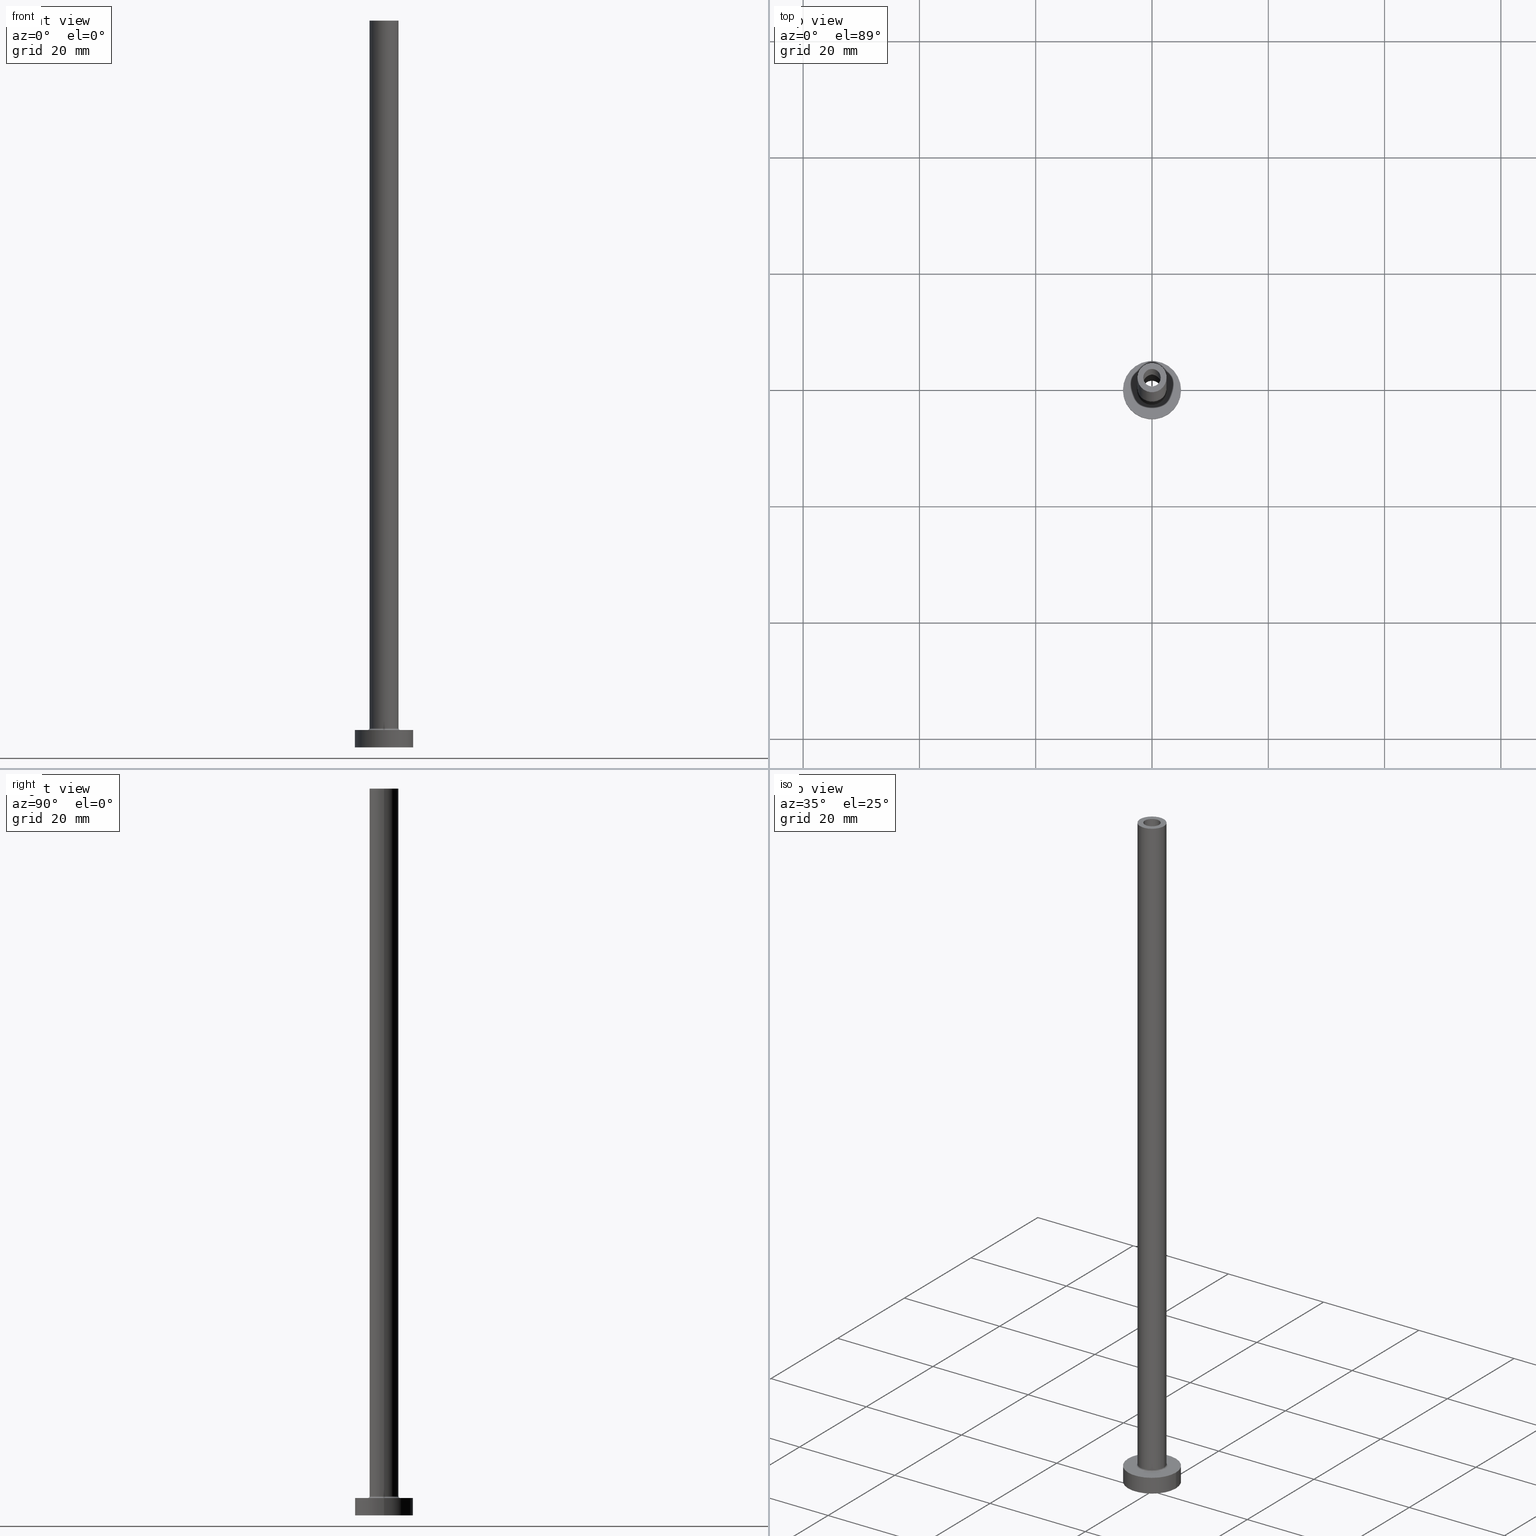
[diagram: canonical four-view strip — front | top / right | iso, engineering-drawing reading convention]
A machine part, canonical four-view strip (front | top / right | iso — engineering-drawing reading convention). The complete STEP part file that produces these views, byte-faithful:
ISO-10303-21;
HEADER;
FILE_DESCRIPTION (( 'STEP AP203' ),
    '1' );
FILE_NAME ('d2a5.STEP',
    '2023-02-13T12:47:48',
    ( '' ),
    ( '' ),
    'SwSTEP 2.0',
    'SolidWorks 2019',
    '' );
FILE_SCHEMA (( 'CONFIG_CONTROL_DESIGN' ));
ENDSEC;

DATA;
#1 = CARTESIAN_POINT ( 'NONE',  ( 1.500000000000000222, 1.836970198721029934E-16, 80.00000000000000000 ) ) ;
#2 = PERSON_AND_ORGANIZATION ( #167, #107 ) ;
#3 = AXIS2_PLACEMENT_3D ( 'NONE', #445, #434, #114 ) ;
#4 = AXIS2_PLACEMENT_3D ( 'NONE', #307, #91, #385 ) ;
#5 = CARTESIAN_POINT ( 'NONE',  ( 0.000000000000000000, 0.000000000000000000, 3.299999999999997158 ) ) ;
#6 = AXIS2_PLACEMENT_3D ( 'NONE', #215, #180, #136 ) ;
#7 = ADVANCED_FACE ( 'NONE', ( #112, #209 ), #423, .T. ) ;
#8 = COORDINATED_UNIVERSAL_TIME_OFFSET ( 1, 0, .AHEAD. ) ;
#9 = DIRECTION ( 'NONE',  ( 0.000000000000000000, 0.000000000000000000, 1.000000000000000000 ) ) ;
#10 = DIRECTION ( 'NONE',  ( 0.000000000000000000, 0.000000000000000000, -1.000000000000000000 ) ) ;
#11 = COORDINATED_UNIVERSAL_TIME_OFFSET ( 1, 0, .AHEAD. ) ;
#12 = LOCAL_TIME ( 13, 47, 48.00000000000000000, #8 ) ;
#13 = DIRECTION ( 'NONE',  ( 0.000000000000000000, -1.000000000000000000, 0.000000000000000000 ) ) ;
#14 = DIRECTION ( 'NONE',  ( -0.000000000000000000, -0.000000000000000000, -1.000000000000000000 ) ) ;
#15 = APPROVAL ( #395, 'NEUR�EN�' ) ;
#16 = ORIENTED_EDGE ( 'NONE', *, *, #141, .T. ) ;
#17 = DIRECTION ( 'NONE',  ( 1.000000000000000000, 0.000000000000000000, 0.000000000000000000 ) ) ;
#18 = LINE ( 'NONE', #425, #142 ) ;
#19 = LOCAL_TIME ( 13, 47, 48.00000000000000000, #11 ) ;
#20 = ORIENTED_EDGE ( 'NONE', *, *, #382, .T. ) ;
#21 = ADVANCED_FACE ( 'NONE', ( #316 ), #447, .F. ) ;
#22 = CARTESIAN_POINT ( 'NONE',  ( 0.000000000000000000, 0.000000000000000000, 3.000000000000000000 ) ) ;
#23 = ORIENTED_EDGE ( 'NONE', *, *, #281, .F. ) ;
#24 = EDGE_LOOP ( 'NONE', ( #342, #23, #243, #235 ) ) ;
#25 = DIRECTION ( 'NONE',  ( -0.000000000000000000, -0.000000000000000000, -1.000000000000000000 ) ) ;
#26 = ORIENTED_EDGE ( 'NONE', *, *, #171, .T. ) ;
#27 = AXIS2_PLACEMENT_3D ( 'NONE', #232, #297, #404 ) ;
#28 = CIRCLE ( 'NONE', #211, 2.500000000000000000 ) ;
#29 = EDGE_CURVE ( 'NONE', #78, #315, #365, .T. ) ;
#30 = VERTEX_POINT ( 'NONE', #219 ) ;
#31 = ORIENTED_EDGE ( 'NONE', *, *, #246, .F. ) ;
#32 = DIRECTION ( 'NONE',  ( -0.000000000000000000, -0.000000000000000000, -1.000000000000000000 ) ) ;
#33 = APPROVAL_PERSON_ORGANIZATION ( #368, #15, #289 ) ;
#34 = CARTESIAN_POINT ( 'NONE',  ( -2.500000000000000000, 0.000000000000000000, 3.299999999999997158 ) ) ;
#35 = PERSON_AND_ORGANIZATION ( #167, #107 ) ;
#36 = CARTESIAN_POINT ( 'NONE',  ( 0.000000000000000000, 0.000000000000000000, 125.0000000000000000 ) ) ;
#37 = COORDINATED_UNIVERSAL_TIME_OFFSET ( 1, 0, .AHEAD. ) ;
#38 = DIRECTION ( 'NONE',  ( -0.000000000000000000, -0.000000000000000000, -1.000000000000000000 ) ) ;
#39 = COORDINATED_UNIVERSAL_TIME_OFFSET ( 1, 0, .AHEAD. ) ;
#40 = DIRECTION ( 'NONE',  ( 0.000000000000000000, 0.000000000000000000, 1.000000000000000000 ) ) ;
#41 = CIRCLE ( 'NONE', #175, 2.799999999999999822 ) ;
#42 = PERSON_AND_ORGANIZATION_ROLE ( 'classification_officer' ) ;
#43 = CARTESIAN_POINT ( 'NONE',  ( -2.799999999999999822, 3.429011037612589276E-16, 2.999999999999998668 ) ) ;
#44 = PERSON_AND_ORGANIZATION ( #167, #107 ) ;
#45 = LINE ( 'NONE', #437, #203 ) ;
#46 = EDGE_LOOP ( 'NONE', ( #386, #193 ) ) ;
#47 = ADVANCED_FACE ( 'NONE', ( #364, #458 ), #103, .F. ) ;
#48 = CARTESIAN_POINT ( 'NONE',  ( 0.000000000000000000, 0.000000000000000000, 125.0000000000000000 ) ) ;
#49 = EDGE_LOOP ( 'NONE', ( #420, #257, #99, #335 ) ) ;
#50 = CARTESIAN_POINT ( 'NONE',  ( 0.000000000000000000, 0.000000000000000000, 80.00000000000000000 ) ) ;
#51 = CARTESIAN_POINT ( 'NONE',  ( 0.000000000000000000, 0.000000000000000000, 125.0000000000000000 ) ) ;
#52 = VERTEX_POINT ( 'NONE', #176 ) ;
#53 =( LENGTH_UNIT ( ) NAMED_UNIT ( * ) SI_UNIT ( .MILLI., .METRE. ) );
#54 = ORIENTED_EDGE ( 'NONE', *, *, #267, .F. ) ;
#55 = PLANE ( 'NONE',  #221 ) ;
#56 = VERTEX_POINT ( 'NONE', #64 ) ;
#57 = DIRECTION ( 'NONE',  ( 0.000000000000000000, 0.000000000000000000, 1.000000000000000000 ) ) ;
#58 = ORIENTED_EDGE ( 'NONE', *, *, #361, .T. ) ;
#59 = ADVANCED_FACE ( 'NONE', ( #362 ), #320, .F. ) ;
#60 = ORIENTED_EDGE ( 'NONE', *, *, #134, .F. ) ;
#61 = AXIS2_PLACEMENT_3D ( 'NONE', #455, #125, #98 ) ;
#62 = CIRCLE ( 'NONE', #446, 5.000000000000000000 ) ;
#63 = ORIENTED_EDGE ( 'NONE', *, *, #119, .F. ) ;
#64 = CARTESIAN_POINT ( 'NONE',  ( 2.799999999999999822, 0.000000000000000000, 2.999999999999998668 ) ) ;
#65 = ADVANCED_FACE ( 'NONE', ( #432 ), #135, .F. ) ;
#66 = APPLICATION_CONTEXT ( 'configuration controlled 3d designs of mechanical parts and assemblies' ) ;
#67 = CARTESIAN_POINT ( 'NONE',  ( -5.000000000000000000, 0.000000000000000000, 3.000000000000000000 ) ) ;
#68 = APPROVAL_PERSON_ORGANIZATION ( #69, #313, #392 ) ;
#69 = PERSON_AND_ORGANIZATION ( #167, #107 ) ;
#70 = CIRCLE ( 'NONE', #169, 2.500000000000000000 ) ;
#71 = DIRECTION ( 'NONE',  ( 1.000000000000000000, 0.000000000000000000, 0.000000000000000000 ) ) ;
#72 = APPLICATION_PROTOCOL_DEFINITION ( 'international standard', 'config_control_design', 1994, #117 ) ;
#73 = CARTESIAN_POINT ( 'NONE',  ( 0.000000000000000000, 0.000000000000000000, 0.000000000000000000 ) ) ;
#74 = PERSON_AND_ORGANIZATION ( #167, #107 ) ;
#75 = DIRECTION ( 'NONE',  ( 0.000000000000000000, 0.000000000000000000, 1.000000000000000000 ) ) ;
#76 = CALENDAR_DATE ( 2023, 13, 2 ) ;
#77 = DIRECTION ( 'NONE',  ( 0.000000000000000000, 0.000000000000000000, 1.000000000000000000 ) ) ;
#78 = VERTEX_POINT ( 'NONE', #318 ) ;
#79 = CARTESIAN_POINT ( 'NONE',  ( 0.000000000000000000, 0.000000000000000000, 3.299999999999997158 ) ) ;
#80 = EDGE_CURVE ( 'NONE', #306, #132, #109, .T. ) ;
#81 = DIRECTION ( 'NONE',  ( 0.000000000000000000, 0.000000000000000000, -1.000000000000000000 ) ) ;
#82 = PRODUCT ( 'd2a5', 'd2a5', '', ( #322 ) ) ;
#83 = AXIS2_PLACEMENT_3D ( 'NONE', #104, #309, #275 ) ;
#84 = DIRECTION ( 'NONE',  ( 1.000000000000000000, 0.000000000000000000, 0.000000000000000000 ) ) ;
#85 = AXIS2_PLACEMENT_3D ( 'NONE', #226, #131, #163 ) ;
#86 = EDGE_CURVE ( 'NONE', #30, #250, #340, .T. ) ;
#87 = DIRECTION ( 'NONE',  ( 0.000000000000000000, 0.000000000000000000, -1.000000000000000000 ) ) ;
#88 = EDGE_LOOP ( 'NONE', ( #161, #122, #456, #238 ) ) ;
#89 = DIRECTION ( 'NONE',  ( 0.000000000000000000, 0.000000000000000000, 1.000000000000000000 ) ) ;
#90 = ORIENTED_EDGE ( 'NONE', *, *, #331, .T. ) ;
#91 = DIRECTION ( 'NONE',  ( -0.000000000000000000, -0.000000000000000000, -1.000000000000000000 ) ) ;
#92 = ORIENTED_EDGE ( 'NONE', *, *, #147, .F. ) ;
#93 = AXIS2_PLACEMENT_3D ( 'NONE', #290, #356, #391 ) ;
#94 = VECTOR ( 'NONE', #38, 1000.000000000000000 ) ;
#95 = PLANE ( 'NONE',  #83 ) ;
#96 = EDGE_LOOP ( 'NONE', ( #384, #90, #457, #259 ) ) ;
#97 = EDGE_CURVE ( 'NONE', #443, #52, #284, .T. ) ;
#98 = DIRECTION ( 'NONE',  ( 1.000000000000000000, 0.000000000000000000, 0.000000000000000000 ) ) ;
#99 = ORIENTED_EDGE ( 'NONE', *, *, #267, .T. ) ;
#100 = ORIENTED_EDGE ( 'NONE', *, *, #171, .F. ) ;
#101 = ADVANCED_FACE ( 'NONE', ( #324 ), #354, .T. ) ;
#102 = ORIENTED_EDGE ( 'NONE', *, *, #220, .T. ) ;
#103 = PLANE ( 'NONE',  #159 ) ;
#104 = CARTESIAN_POINT ( 'NONE',  ( 0.000000000000000000, 0.000000000000000000, 80.00000000000000000 ) ) ;
#105 = DIRECTION ( 'NONE',  ( 0.000000000000000000, 0.000000000000000000, -1.000000000000000000 ) ) ;
#106 = AXIS2_PLACEMENT_3D ( 'NONE', #442, #328, #332 ) ;
#107 = ORGANIZATION ( 'NEUR�EN�', 'NEUR�EN�', '' ) ;
#108 = DIRECTION ( 'NONE',  ( 1.000000000000000000, 0.000000000000000000, 0.000000000000000000 ) ) ;
#109 = LINE ( 'NONE', #397, #280 ) ;
#110 = DATE_AND_TIME ( #255, #271 ) ;
#111 = CC_DESIGN_PERSON_AND_ORGANIZATION_ASSIGNMENT ( #2, #139, ( #174 ) ) ;
#112 = FACE_BOUND ( 'NONE', #344, .T. ) ;
#113 = APPROVAL_STATUS ( 'not_yet_approved' ) ;
#114 = DIRECTION ( 'NONE',  ( -1.000000000000000000, 0.000000000000000000, 0.000000000000000000 ) ) ;
#115 = VERTEX_POINT ( 'NONE', #1 ) ;
#116 = AXIS2_PLACEMENT_3D ( 'NONE', #268, #89, #283 ) ;
#117 = APPLICATION_CONTEXT ( 'configuration controlled 3d designs of mechanical parts and assemblies' ) ;
#118 = CARTESIAN_POINT ( 'NONE',  ( 0.000000000000000000, 0.000000000000000000, 3.299999999999997158 ) ) ;
#119 = EDGE_CURVE ( 'NONE', #315, #78, #358, .T. ) ;
#120 = CARTESIAN_POINT ( 'NONE',  ( -1.500000000000000222, 0.000000000000000000, 125.0000000000000000 ) ) ;
#121 = CARTESIAN_POINT ( 'NONE',  ( -1.500000000000000222, 0.000000000000000000, 80.00000000000000000 ) ) ;
#122 = ORIENTED_EDGE ( 'NONE', *, *, #326, .T. ) ;
#123 = CARTESIAN_POINT ( 'NONE',  ( 0.000000000000000000, 0.000000000000000000, 84.66690475583119735 ) ) ;
#124 = ORIENTED_EDGE ( 'NONE', *, *, #80, .T. ) ;
#125 = DIRECTION ( 'NONE',  ( 0.000000000000000000, 0.000000000000000000, 1.000000000000000000 ) ) ;
#126 = ORIENTED_EDGE ( 'NONE', *, *, #29, .F. ) ;
#127 = CARTESIAN_POINT ( 'NONE',  ( 0.000000000000000000, 0.000000000000000000, 80.00000000000000000 ) ) ;
#128 = EDGE_CURVE ( 'NONE', #129, #378, #414, .T. ) ;
#129 = VERTEX_POINT ( 'NONE', #67 ) ;
#130 = MANIFOLD_SOLID_BREP ( 'Odebrat vysunut�m4', #422 ) ;
#131 = DIRECTION ( 'NONE',  ( 0.000000000000000000, 0.000000000000000000, -1.000000000000000000 ) ) ;
#132 = VERTEX_POINT ( 'NONE', #34 ) ;
#133 = ORIENTED_EDGE ( 'NONE', *, *, #361, .F. ) ;
#134 = EDGE_CURVE ( 'NONE', #197, #315, #138, .T. ) ;
#135 = CYLINDRICAL_SURFACE ( 'NONE', #222, 1.500000000000000222 ) ;
#136 = DIRECTION ( 'NONE',  ( -1.000000000000000000, 0.000000000000000000, 0.000000000000000000 ) ) ;
#137 = DIRECTION ( 'NONE',  ( 1.000000000000000000, 0.000000000000000000, 0.000000000000000000 ) ) ;
#138 = LINE ( 'NONE', #426, #228 ) ;
#139 = PERSON_AND_ORGANIZATION_ROLE ( 'creator' ) ;
#140 = LINE ( 'NONE', #187, #428 ) ;
#141 = EDGE_CURVE ( 'NONE', #188, #78, #140, .T. ) ;
#142 = VECTOR ( 'NONE', #25, 1000.000000000000000 ) ;
#143 = DIRECTION ( 'NONE',  ( -0.000000000000000000, -0.000000000000000000, -1.000000000000000000 ) ) ;
#144 = DATE_AND_TIME ( #184, #12 ) ;
#145 = FACE_OUTER_BOUND ( 'NONE', #381, .T. ) ;
#146 = DATE_AND_TIME ( #76, #372 ) ;
#147 = EDGE_CURVE ( 'NONE', #132, #52, #70, .T. ) ;
#148 = DIRECTION ( 'NONE',  ( 0.000000000000000000, 0.000000000000000000, 1.000000000000000000 ) ) ;
#149 = APPROVAL_STATUS ( 'not_yet_approved' ) ;
#150 = CC_DESIGN_APPROVAL ( #192, ( #174 ) ) ;
#151 = AXIS2_PLACEMENT_3D ( 'NONE', #123, #182, #370 ) ;
#152 = DIRECTION ( 'NONE',  ( 0.000000000000000000, 0.000000000000000000, 1.000000000000000000 ) ) ;
#153 = AXIS2_PLACEMENT_3D ( 'NONE', #460, #245, #71 ) ;
#154 = ORIENTED_EDGE ( 'NONE', *, *, #388, .T. ) ;
#155 = DIRECTION ( 'NONE',  ( 1.000000000000000000, 0.000000000000000000, 0.000000000000000000 ) ) ;
#156 = ORIENTED_EDGE ( 'NONE', *, *, #177, .T. ) ;
#157 = FACE_OUTER_BOUND ( 'NONE', #206, .T. ) ;
#158 = DIRECTION ( 'NONE',  ( 0.000000000000000000, 0.000000000000000000, 1.000000000000000000 ) ) ;
#159 = AXIS2_PLACEMENT_3D ( 'NONE', #73, #429, #217 ) ;
#160 = CYLINDRICAL_SURFACE ( 'NONE', #4, 5.000000000000000000 ) ;
#161 = ORIENTED_EDGE ( 'NONE', *, *, #141, .F. ) ;
#162 = PRODUCT_DEFINITION ( 'NEZN�M�', '', #174, #351 ) ;
#163 = DIRECTION ( 'NONE',  ( -1.000000000000000000, 0.000000000000000000, 0.000000000000000000 ) ) ;
#164 = VERTEX_POINT ( 'NONE', #366 ) ;
#165 = UNCERTAINTY_MEASURE_WITH_UNIT (LENGTH_MEASURE( 1.000000000000000082E-05 ), #53, 'distance_accuracy_value', 'NONE');
#166 = FACE_OUTER_BOUND ( 'NONE', #170, .T. ) ;
#167 = PERSON ( 'NEUR�EN�', 'NEUR�EN�', 'NEUR�EN�', ('NEUR�EN�'), ('NEUR�EN�'), ('NEUR�EN�') ) ;
#168 = EDGE_LOOP ( 'NONE', ( #26, #156, #371, #54 ) ) ;
#169 = AXIS2_PLACEMENT_3D ( 'NONE', #118, #40, #260 ) ;
#170 = EDGE_LOOP ( 'NONE', ( #270, #406 ) ) ;
#171 = EDGE_CURVE ( 'NONE', #250, #30, #407, .T. ) ;
#172 = DIRECTION ( 'NONE',  ( 0.000000000000000000, 0.000000000000000000, -1.000000000000000000 ) ) ;
#173 = CARTESIAN_POINT ( 'NONE',  ( 2.500000000000000000, 3.061616997868382648E-16, 125.0000000000000000 ) ) ;
#174 = PRODUCT_DEFINITION_FORMATION_WITH_SPECIFIED_SOURCE ( 'LIBOVOLN�', '', #82, .NOT_KNOWN. ) ;
#175 = AXIS2_PLACEMENT_3D ( 'NONE', #227, #334, #84 ) ;
#176 = CARTESIAN_POINT ( 'NONE',  ( 2.500000000000000000, 3.061616997868382648E-16, 3.299999999999997158 ) ) ;
#177 = EDGE_CURVE ( 'NONE', #30, #115, #258, .T. ) ;
#178 = CARTESIAN_POINT ( 'NONE',  ( 0.000000000000000000, 0.000000000000000000, 125.0000000000000000 ) ) ;
#179 = CALENDAR_DATE ( 2023, 13, 2 ) ;
#180 = DIRECTION ( 'NONE',  ( 0.000000000000000000, 0.000000000000000000, -1.000000000000000000 ) ) ;
#181 = DATE_AND_TIME ( #295, #19 ) ;
#182 = DIRECTION ( 'NONE',  ( 0.000000000000000000, 0.000000000000000000, -1.000000000000000000 ) ) ;
#183 = EDGE_CURVE ( 'NONE', #132, #207, #387, .T. ) ;
#184 = CALENDAR_DATE ( 2023, 13, 2 ) ;
#185 = ORIENTED_EDGE ( 'NONE', *, *, #353, .F. ) ;
#186 = PERSON_AND_ORGANIZATION ( #167, #107 ) ;
#187 = CARTESIAN_POINT ( 'NONE',  ( 1.650000000000000133, 2.020667218593132508E-16, 84.66690475583119735 ) ) ;
#188 = VERTEX_POINT ( 'NONE', #403 ) ;
#189 = TOROIDAL_SURFACE ( 'NONE', #264, 2.799999999999999822, 0.2999999999999999889 ) ;
#190 = CARTESIAN_POINT ( 'NONE',  ( 0.000000000000000000, 0.000000000000000000, 3.000000000000000000 ) ) ;
#191 = CYLINDRICAL_SURFACE ( 'NONE', #151, 1.650000000000000133 ) ;
#192 = APPROVAL ( #149, 'NEUR�EN�' ) ;
#193 = ORIENTED_EDGE ( 'NONE', *, *, #198, .T. ) ;
#194 = DIRECTION ( 'NONE',  ( 0.000000000000000000, 0.000000000000000000, 1.000000000000000000 ) ) ;
#195 = CIRCLE ( 'NONE', #348, 1.500000000000000222 ) ;
#196 =( NAMED_UNIT ( * ) SI_UNIT ( $, .STERADIAN. ) SOLID_ANGLE_UNIT ( ) );
#197 = VERTEX_POINT ( 'NONE', #441 ) ;
#198 = EDGE_CURVE ( 'NONE', #378, #129, #62, .T. ) ;
#199 = DIRECTION ( 'NONE',  ( 0.000000000000000000, 0.000000000000000000, 1.000000000000000000 ) ) ;
#200 = EDGE_LOOP ( 'NONE', ( #376, #449, #274, #398 ) ) ;
#201 = LINE ( 'NONE', #374, #347 ) ;
#202 = ORIENTED_EDGE ( 'NONE', *, *, #214, .T. ) ;
#203 = VECTOR ( 'NONE', #266, 1000.000000000000000 ) ;
#204 = DIRECTION ( 'NONE',  ( 1.000000000000000000, 0.000000000000000000, 0.000000000000000000 ) ) ;
#205 = AXIS2_PLACEMENT_3D ( 'NONE', #427, #330, #108 ) ;
#206 = EDGE_LOOP ( 'NONE', ( #416, #276, #154, #58 ) ) ;
#207 = VERTEX_POINT ( 'NONE', #43 ) ;
#208 = DIRECTION ( 'NONE',  ( 1.000000000000000000, 0.000000000000000000, 0.000000000000000000 ) ) ;
#209 = FACE_OUTER_BOUND ( 'NONE', #314, .T. ) ;
#210 = APPROVAL_PERSON_ORGANIZATION ( #186, #192, #431 ) ;
#211 = AXIS2_PLACEMENT_3D ( 'NONE', #79, #152, #262 ) ;
#212 = AXIS2_PLACEMENT_3D ( 'NONE', #390, #75, #282 ) ;
#213 = SHAPE_DEFINITION_REPRESENTATION ( #251, #336 ) ;
#214 = EDGE_CURVE ( 'NONE', #197, #188, #323, .T. ) ;
#215 = CARTESIAN_POINT ( 'NONE',  ( 0.000000000000000000, 0.000000000000000000, 84.66690475583119735 ) ) ;
#216 = PERSON_AND_ORGANIZATION_ROLE ( 'creator' ) ;
#217 = DIRECTION ( 'NONE',  ( 1.000000000000000000, 0.000000000000000000, -0.000000000000000000 ) ) ;
#218 = PERSON_AND_ORGANIZATION_ROLE ( 'design_supplier' ) ;
#219 = CARTESIAN_POINT ( 'NONE',  ( 1.500000000000000222, 1.836970198721029934E-16, 125.0000000000000000 ) ) ;
#220 = EDGE_CURVE ( 'NONE', #443, #306, #430, .T. ) ;
#221 = AXIS2_PLACEMENT_3D ( 'NONE', #22, #199, #312 ) ;
#222 = AXIS2_PLACEMENT_3D ( 'NONE', #36, #172, #279 ) ;
#223 = CYLINDRICAL_SURFACE ( 'NONE', #85, 1.500000000000000222 ) ;
#224 = EDGE_LOOP ( 'NONE', ( #63, #126 ) ) ;
#225 = PERSON_AND_ORGANIZATION_ROLE ( 'design_owner' ) ;
#226 = CARTESIAN_POINT ( 'NONE',  ( 0.000000000000000000, 0.000000000000000000, 125.0000000000000000 ) ) ;
#227 = CARTESIAN_POINT ( 'NONE',  ( 0.000000000000000000, 0.000000000000000000, 3.000000000000000000 ) ) ;
#228 = VECTOR ( 'NONE', #105, 1000.000000000000000 ) ;
#229 = EDGE_CURVE ( 'NONE', #56, #207, #41, .T. ) ;
#230 = AXIS2_PLACEMENT_3D ( 'NONE', #50, #77, #369 ) ;
#231 = CYLINDRICAL_SURFACE ( 'NONE', #106, 5.000000000000000000 ) ;
#232 = CARTESIAN_POINT ( 'NONE',  ( -2.799999999999999822, 3.429011037612588783E-16, 3.299999999999997158 ) ) ;
#233 =( NAMED_UNIT ( * ) PLANE_ANGLE_UNIT ( ) SI_UNIT ( $, .RADIAN. ) );
#234 = ADVANCED_FACE ( 'NONE', ( #292 ), #191, .F. ) ;
#235 = ORIENTED_EDGE ( 'NONE', *, *, #261, .F. ) ;
#236 = FACE_BOUND ( 'NONE', #308, .T. ) ;
#237 = AXIS2_PLACEMENT_3D ( 'NONE', #248, #32, #321 ) ;
#238 = ORIENTED_EDGE ( 'NONE', *, *, #119, .T. ) ;
#239 = ORIENTED_EDGE ( 'NONE', *, *, #345, .F. ) ;
#240 = CARTESIAN_POINT ( 'NONE',  ( 0.000000000000000000, 0.000000000000000000, 80.00000000000000000 ) ) ;
#241 = ORIENTED_EDGE ( 'NONE', *, *, #401, .T. ) ;
#242 = CC_DESIGN_PERSON_AND_ORGANIZATION_ASSIGNMENT ( #327, #42, ( #325 ) ) ;
#243 = ORIENTED_EDGE ( 'NONE', *, *, #246, .T. ) ;
#244 = DIRECTION ( 'NONE',  ( -0.000000000000000000, -0.000000000000000000, -1.000000000000000000 ) ) ;
#245 = DIRECTION ( 'NONE',  ( -0.000000000000000000, -0.000000000000000000, -1.000000000000000000 ) ) ;
#246 = EDGE_CURVE ( 'NONE', #52, #56, #304, .T. ) ;
#247 = APPROVAL_DATE_TIME ( #146, #313 ) ;
#248 = CARTESIAN_POINT ( 'NONE',  ( 0.000000000000000000, 0.000000000000000000, 125.0000000000000000 ) ) ;
#249 = CIRCLE ( 'NONE', #349, 1.650000000000000133 ) ;
#250 = VERTEX_POINT ( 'NONE', #120 ) ;
#251 = PRODUCT_DEFINITION_SHAPE ( 'NONE', 'NONE',  #162 ) ;
#252 = APPROVAL_DATE_TIME ( #181, #192 ) ;
#253 = CC_DESIGN_DATE_AND_TIME_ASSIGNMENT ( #144, #291, ( #325 ) ) ;
#254 = DIRECTION ( 'NONE',  ( 0.000000000000000000, 0.000000000000000000, 1.000000000000000000 ) ) ;
#255 = CALENDAR_DATE ( 2023, 13, 2 ) ;
#256 = FACE_OUTER_BOUND ( 'NONE', #168, .T. ) ;
#257 = ORIENTED_EDGE ( 'NONE', *, *, #86, .T. ) ;
#258 = LINE ( 'NONE', #400, #273 ) ;
#259 = ORIENTED_EDGE ( 'NONE', *, *, #388, .F. ) ;
#260 = DIRECTION ( 'NONE',  ( 1.000000000000000000, 0.000000000000000000, 0.000000000000000000 ) ) ;
#261 = EDGE_CURVE ( 'NONE', #207, #56, #288, .T. ) ;
#262 = DIRECTION ( 'NONE',  ( 1.000000000000000000, 0.000000000000000000, 0.000000000000000000 ) ) ;
#263 = CIRCLE ( 'NONE', #438, 2.500000000000000000 ) ;
#264 = AXIS2_PLACEMENT_3D ( 'NONE', #319, #57, #204 ) ;
#265 = AXIS2_PLACEMENT_3D ( 'NONE', #48, #148, #337 ) ;
#266 = DIRECTION ( 'NONE',  ( 0.000000000000000000, 0.000000000000000000, -1.000000000000000000 ) ) ;
#267 = EDGE_CURVE ( 'NONE', #250, #278, #45, .T. ) ;
#268 = CARTESIAN_POINT ( 'NONE',  ( 0.000000000000000000, 0.000000000000000000, 0.000000000000000000 ) ) ;
#269 = VERTEX_POINT ( 'NONE', #299 ) ;
#270 = ORIENTED_EDGE ( 'NONE', *, *, #214, .F. ) ;
#271 = LOCAL_TIME ( 13, 47, 48.00000000000000000, #39 ) ;
#272 = DIRECTION ( 'NONE',  ( 1.000000000000000000, 0.000000000000000000, 0.000000000000000000 ) ) ;
#273 = VECTOR ( 'NONE', #87, 1000.000000000000000 ) ;
#274 = ORIENTED_EDGE ( 'NONE', *, *, #281, .T. ) ;
#275 = DIRECTION ( 'NONE',  ( 1.000000000000000000, 0.000000000000000000, -0.000000000000000000 ) ) ;
#276 = ORIENTED_EDGE ( 'NONE', *, *, #128, .F. ) ;
#277 = ADVANCED_FACE ( 'NONE', ( #157 ), #231, .T. ) ;
#278 = VERTEX_POINT ( 'NONE', #121 ) ;
#279 = DIRECTION ( 'NONE',  ( -1.000000000000000000, 0.000000000000000000, 0.000000000000000000 ) ) ;
#280 = VECTOR ( 'NONE', #143, 1000.000000000000000 ) ;
#281 = EDGE_CURVE ( 'NONE', #52, #132, #28, .T. ) ;
#282 = DIRECTION ( 'NONE',  ( 1.000000000000000000, 0.000000000000000000, -0.000000000000000000 ) ) ;
#283 = DIRECTION ( 'NONE',  ( 1.000000000000000000, 0.000000000000000000, 0.000000000000000000 ) ) ;
#284 = LINE ( 'NONE', #173, #94 ) ;
#285 = DATE_AND_TIME ( #179, #421 ) ;
#286 = DIRECTION ( 'NONE',  ( 1.000000000000000000, 0.000000000000000000, 0.000000000000000000 ) ) ;
#287 = CIRCLE ( 'NONE', #116, 5.000000000000000000 ) ;
#288 = CIRCLE ( 'NONE', #333, 2.799999999999999822 ) ;
#289 = APPROVAL_ROLE ( '' ) ;
#290 = CARTESIAN_POINT ( 'NONE',  ( 0.000000000000000000, 0.000000000000000000, 3.000000000000000000 ) ) ;
#291 = DATE_TIME_ROLE ( 'classification_date' ) ;
#292 = FACE_OUTER_BOUND ( 'NONE', #300, .T. ) ;
#293 = DATE_TIME_ROLE ( 'creation_date' ) ;
#294 = CARTESIAN_POINT ( 'NONE',  ( 0.000000000000000000, 0.000000000000000000, 3.000000000000000000 ) ) ;
#295 = CALENDAR_DATE ( 2023, 13, 2 ) ;
#296 = CIRCLE ( 'NONE', #357, 5.000000000000000000 ) ;
#297 = DIRECTION ( 'NONE',  ( 1.224646799147353207E-16, 1.000000000000000000, -0.000000000000000000 ) ) ;
#298 = ADVANCED_FACE ( 'NONE', ( #145 ), #301, .T. ) ;
#299 = CARTESIAN_POINT ( 'NONE',  ( 5.000000000000000000, 6.123233995736766282E-16, 0.000000000000000000 ) ) ;
#300 = EDGE_LOOP ( 'NONE', ( #202, #16, #413, #60 ) ) ;
#301 = CYLINDRICAL_SURFACE ( 'NONE', #3, 2.500000000000000000 ) ;
#302 = ORIENTED_EDGE ( 'NONE', *, *, #261, .T. ) ;
#303 = ADVANCED_FACE ( 'NONE', ( #256 ), #223, .F. ) ;
#304 = CIRCLE ( 'NONE', #379, 0.2999999999999999334 ) ;
#305 = DIRECTION ( 'NONE',  ( 1.000000000000000000, 0.000000000000000000, 0.000000000000000000 ) ) ;
#306 = VERTEX_POINT ( 'NONE', #461 ) ;
#307 = CARTESIAN_POINT ( 'NONE',  ( 0.000000000000000000, 0.000000000000000000, 3.000000000000000000 ) ) ;
#308 = EDGE_LOOP ( 'NONE', ( #20, #241 ) ) ;
#309 = DIRECTION ( 'NONE',  ( 0.000000000000000000, 0.000000000000000000, 1.000000000000000000 ) ) ;
#310 = EDGE_LOOP ( 'NONE', ( #92, #453, #435, #31 ) ) ;
#311 =( GEOMETRIC_REPRESENTATION_CONTEXT ( 3 ) GLOBAL_UNCERTAINTY_ASSIGNED_CONTEXT ( ( #165 ) ) GLOBAL_UNIT_ASSIGNED_CONTEXT ( ( #53, #233, #196 ) ) REPRESENTATION_CONTEXT ( 'NONE', 'WORKASPACE' ) );
#312 = DIRECTION ( 'NONE',  ( 1.000000000000000000, 0.000000000000000000, -0.000000000000000000 ) ) ;
#313 = APPROVAL ( #113, 'NEUR�EN�' ) ;
#314 = EDGE_LOOP ( 'NONE', ( #411, #102 ) ) ;
#315 = VERTEX_POINT ( 'NONE', #452 ) ;
#316 = FACE_OUTER_BOUND ( 'NONE', #310, .T. ) ;
#317 = ADVANCED_FACE ( 'NONE', ( #236, #166 ), #95, .F. ) ;
#318 = CARTESIAN_POINT ( 'NONE',  ( 1.650000000000000133, 2.020667218593132508E-16, 0.000000000000000000 ) ) ;
#319 = CARTESIAN_POINT ( 'NONE',  ( 0.000000000000000000, 0.000000000000000000, 3.299999999999997158 ) ) ;
#320 = CYLINDRICAL_SURFACE ( 'NONE', #6, 1.650000000000000133 ) ;
#321 = DIRECTION ( 'NONE',  ( -1.000000000000000000, 0.000000000000000000, 0.000000000000000000 ) ) ;
#322 = MECHANICAL_CONTEXT ( 'NONE', #66, 'mechanical' ) ;
#323 = CIRCLE ( 'NONE', #230, 1.650000000000000133 ) ;
#324 = FACE_OUTER_BOUND ( 'NONE', #200, .T. ) ;
#325 = SECURITY_CLASSIFICATION ( '', '', #363 ) ;
#326 = EDGE_CURVE ( 'NONE', #188, #197, #249, .T. ) ;
#327 = PERSON_AND_ORGANIZATION ( #167, #107 ) ;
#328 = DIRECTION ( 'NONE',  ( -0.000000000000000000, -0.000000000000000000, -1.000000000000000000 ) ) ;
#329 = CARTESIAN_POINT ( 'NONE',  ( 2.799999999999999822, 0.000000000000000000, 3.299999999999997158 ) ) ;
#330 = DIRECTION ( 'NONE',  ( 0.000000000000000000, 0.000000000000000000, 1.000000000000000000 ) ) ;
#331 = EDGE_CURVE ( 'NONE', #378, #269, #201, .T. ) ;
#332 = DIRECTION ( 'NONE',  ( -1.000000000000000000, 0.000000000000000000, 0.000000000000000000 ) ) ;
#333 = AXIS2_PLACEMENT_3D ( 'NONE', #294, #14, #155 ) ;
#334 = DIRECTION ( 'NONE',  ( -0.000000000000000000, -0.000000000000000000, -1.000000000000000000 ) ) ;
#335 = ORIENTED_EDGE ( 'NONE', *, *, #401, .F. ) ;
#336 = ADVANCED_BREP_SHAPE_REPRESENTATION ( 'd2a5', ( #130, #205 ), #311 ) ;
#337 = DIRECTION ( 'NONE',  ( 1.000000000000000000, 0.000000000000000000, 0.000000000000000000 ) ) ;
#338 = CC_DESIGN_PERSON_AND_ORGANIZATION_ASSIGNMENT ( #74, #218, ( #174 ) ) ;
#339 = DIRECTION ( 'NONE',  ( 1.000000000000000000, 0.000000000000000000, 0.000000000000000000 ) ) ;
#340 = CIRCLE ( 'NONE', #394, 1.500000000000000222 ) ;
#341 = FACE_BOUND ( 'NONE', #389, .T. ) ;
#342 = ORIENTED_EDGE ( 'NONE', *, *, #183, .F. ) ;
#343 = DIRECTION ( 'NONE',  ( -0.000000000000000000, -0.000000000000000000, -1.000000000000000000 ) ) ;
#344 = EDGE_LOOP ( 'NONE', ( #100, #451 ) ) ;
#345 = EDGE_CURVE ( 'NONE', #306, #443, #263, .T. ) ;
#346 = EDGE_LOOP ( 'NONE', ( #133, #185 ) ) ;
#347 = VECTOR ( 'NONE', #343, 1000.000000000000000 ) ;
#348 = AXIS2_PLACEMENT_3D ( 'NONE', #240, #158, #305 ) ;
#349 = AXIS2_PLACEMENT_3D ( 'NONE', #127, #450, #339 ) ;
#350 = ORIENTED_EDGE ( 'NONE', *, *, #97, .F. ) ;
#351 = DESIGN_CONTEXT ( 'detailed design', #117, 'design' ) ;
#352 = ORIENTED_EDGE ( 'NONE', *, *, #147, .T. ) ;
#353 = EDGE_CURVE ( 'NONE', #269, #164, #296, .T. ) ;
#354 = CYLINDRICAL_SURFACE ( 'NONE', #237, 2.500000000000000000 ) ;
#355 = CIRCLE ( 'NONE', #61, 1.500000000000000222 ) ;
#356 = DIRECTION ( 'NONE',  ( 0.000000000000000000, 0.000000000000000000, 1.000000000000000000 ) ) ;
#357 = AXIS2_PLACEMENT_3D ( 'NONE', #380, #383, #137 ) ;
#358 = CIRCLE ( 'NONE', #153, 1.650000000000000133 ) ;
#359 = DIRECTION ( 'NONE',  ( 0.000000000000000000, 0.000000000000000000, 1.000000000000000000 ) ) ;
#360 = APPROVAL_DATE_TIME ( #110, #15 ) ;
#361 = EDGE_CURVE ( 'NONE', #164, #269, #287, .T. ) ;
#362 = FACE_OUTER_BOUND ( 'NONE', #88, .T. ) ;
#363 = SECURITY_CLASSIFICATION_LEVEL ( 'unclassified' ) ;
#364 = FACE_BOUND ( 'NONE', #224, .T. ) ;
#365 = CIRCLE ( 'NONE', #408, 1.650000000000000133 ) ;
#366 = CARTESIAN_POINT ( 'NONE',  ( -5.000000000000000000, 0.000000000000000000, 0.000000000000000000 ) ) ;
#367 = CC_DESIGN_PERSON_AND_ORGANIZATION_ASSIGNMENT ( #44, #225, ( #82 ) ) ;
#368 = PERSON_AND_ORGANIZATION ( #167, #107 ) ;
#369 = DIRECTION ( 'NONE',  ( 1.000000000000000000, 0.000000000000000000, 0.000000000000000000 ) ) ;
#370 = DIRECTION ( 'NONE',  ( -1.000000000000000000, 0.000000000000000000, 0.000000000000000000 ) ) ;
#371 = ORIENTED_EDGE ( 'NONE', *, *, #382, .F. ) ;
#372 = LOCAL_TIME ( 13, 47, 48.00000000000000000, #399 ) ;
#373 = DIRECTION ( 'NONE',  ( 1.000000000000000000, 0.000000000000000000, 0.000000000000000000 ) ) ;
#374 = CARTESIAN_POINT ( 'NONE',  ( 5.000000000000000000, 6.123233995736766282E-16, 3.000000000000000000 ) ) ;
#375 = CC_DESIGN_DATE_AND_TIME_ASSIGNMENT ( #285, #293, ( #162 ) ) ;
#376 = ORIENTED_EDGE ( 'NONE', *, *, #220, .F. ) ;
#377 = FACE_OUTER_BOUND ( 'NONE', #46, .T. ) ;
#378 = VERTEX_POINT ( 'NONE', #417 ) ;
#379 = AXIS2_PLACEMENT_3D ( 'NONE', #329, #13, #10 ) ;
#380 = CARTESIAN_POINT ( 'NONE',  ( 0.000000000000000000, 0.000000000000000000, 0.000000000000000000 ) ) ;
#381 = EDGE_LOOP ( 'NONE', ( #350, #239, #124, #352 ) ) ;
#382 = EDGE_CURVE ( 'NONE', #278, #115, #355, .T. ) ;
#383 = DIRECTION ( 'NONE',  ( 0.000000000000000000, 0.000000000000000000, 1.000000000000000000 ) ) ;
#384 = ORIENTED_EDGE ( 'NONE', *, *, #198, .F. ) ;
#385 = DIRECTION ( 'NONE',  ( -1.000000000000000000, 0.000000000000000000, 0.000000000000000000 ) ) ;
#386 = ORIENTED_EDGE ( 'NONE', *, *, #128, .T. ) ;
#387 = CIRCLE ( 'NONE', #27, 0.2999999999999999334 ) ;
#388 = EDGE_CURVE ( 'NONE', #129, #164, #18, .T. ) ;
#389 = EDGE_LOOP ( 'NONE', ( #418, #302 ) ) ;
#390 = CARTESIAN_POINT ( 'NONE',  ( 0.000000000000000000, 0.000000000000000000, 125.0000000000000000 ) ) ;
#391 = DIRECTION ( 'NONE',  ( 1.000000000000000000, 0.000000000000000000, 0.000000000000000000 ) ) ;
#392 = APPROVAL_ROLE ( '' ) ;
#393 = DIRECTION ( 'NONE',  ( 1.000000000000000000, 0.000000000000000000, 0.000000000000000000 ) ) ;
#394 = AXIS2_PLACEMENT_3D ( 'NONE', #178, #254, #393 ) ;
#395 = APPROVAL_STATUS ( 'not_yet_approved' ) ;
#396 = CC_DESIGN_PERSON_AND_ORGANIZATION_ASSIGNMENT ( #35, #216, ( #162 ) ) ;
#397 = CARTESIAN_POINT ( 'NONE',  ( -2.500000000000000000, 0.000000000000000000, 125.0000000000000000 ) ) ;
#398 = ORIENTED_EDGE ( 'NONE', *, *, #80, .F. ) ;
#399 = COORDINATED_UNIVERSAL_TIME_OFFSET ( 1, 0, .AHEAD. ) ;
#400 = CARTESIAN_POINT ( 'NONE',  ( 1.500000000000000222, 1.836970198721029934E-16, 125.0000000000000000 ) ) ;
#401 = EDGE_CURVE ( 'NONE', #115, #278, #195, .T. ) ;
#402 = DIRECTION ( 'NONE',  ( 0.000000000000000000, 0.000000000000000000, 1.000000000000000000 ) ) ;
#403 = CARTESIAN_POINT ( 'NONE',  ( 1.650000000000000133, 2.020667218593132508E-16, 80.00000000000000000 ) ) ;
#404 = DIRECTION ( 'NONE',  ( -1.000000000000000000, 1.224646799147353207E-16, 0.000000000000000000 ) ) ;
#405 = AXIS2_PLACEMENT_3D ( 'NONE', #410, #402, #17 ) ;
#406 = ORIENTED_EDGE ( 'NONE', *, *, #326, .F. ) ;
#407 = CIRCLE ( 'NONE', #265, 1.500000000000000222 ) ;
#408 = AXIS2_PLACEMENT_3D ( 'NONE', #424, #244, #208 ) ;
#409 = PRODUCT_RELATED_PRODUCT_CATEGORY ( 'detail', '', ( #82 ) ) ;
#410 = CARTESIAN_POINT ( 'NONE',  ( 0.000000000000000000, 0.000000000000000000, 125.0000000000000000 ) ) ;
#411 = ORIENTED_EDGE ( 'NONE', *, *, #345, .T. ) ;
#412 = CARTESIAN_POINT ( 'NONE',  ( 2.500000000000000000, 3.061616997868382648E-16, 125.0000000000000000 ) ) ;
#413 = ORIENTED_EDGE ( 'NONE', *, *, #29, .T. ) ;
#414 = CIRCLE ( 'NONE', #93, 5.000000000000000000 ) ;
#415 = FACE_OUTER_BOUND ( 'NONE', #24, .T. ) ;
#416 = ORIENTED_EDGE ( 'NONE', *, *, #331, .F. ) ;
#417 = CARTESIAN_POINT ( 'NONE',  ( 5.000000000000000000, 6.123233995736766282E-16, 3.000000000000000000 ) ) ;
#418 = ORIENTED_EDGE ( 'NONE', *, *, #229, .T. ) ;
#419 = ADVANCED_FACE ( 'NONE', ( #341, #377 ), #55, .T. ) ;
#420 = ORIENTED_EDGE ( 'NONE', *, *, #177, .F. ) ;
#421 = LOCAL_TIME ( 13, 47, 48.00000000000000000, #37 ) ;
#422 = CLOSED_SHELL ( 'NONE', ( #303, #234, #21, #101, #433, #277, #419, #47, #298, #7, #444, #59, #317, #65 ) ) ;
#423 = PLANE ( 'NONE',  #212 ) ;
#424 = CARTESIAN_POINT ( 'NONE',  ( 0.000000000000000000, 0.000000000000000000, 0.000000000000000000 ) ) ;
#425 = CARTESIAN_POINT ( 'NONE',  ( -5.000000000000000000, 0.000000000000000000, 3.000000000000000000 ) ) ;
#426 = CARTESIAN_POINT ( 'NONE',  ( -1.650000000000000133, 0.000000000000000000, 84.66690475583119735 ) ) ;
#427 = CARTESIAN_POINT ( 'NONE',  ( 0.000000000000000000, 0.000000000000000000, 0.000000000000000000 ) ) ;
#428 = VECTOR ( 'NONE', #81, 1000.000000000000000 ) ;
#429 = DIRECTION ( 'NONE',  ( 0.000000000000000000, 0.000000000000000000, 1.000000000000000000 ) ) ;
#430 = CIRCLE ( 'NONE', #405, 2.500000000000000000 ) ;
#431 = APPROVAL_ROLE ( '' ) ;
#432 = FACE_OUTER_BOUND ( 'NONE', #49, .T. ) ;
#433 = ADVANCED_FACE ( 'NONE', ( #448 ), #160, .T. ) ;
#434 = DIRECTION ( 'NONE',  ( -0.000000000000000000, -0.000000000000000000, -1.000000000000000000 ) ) ;
#435 = ORIENTED_EDGE ( 'NONE', *, *, #229, .F. ) ;
#436 = CC_DESIGN_APPROVAL ( #313, ( #325 ) ) ;
#437 = CARTESIAN_POINT ( 'NONE',  ( -1.500000000000000222, 0.000000000000000000, 125.0000000000000000 ) ) ;
#438 = AXIS2_PLACEMENT_3D ( 'NONE', #51, #194, #272 ) ;
#439 = AXIS2_PLACEMENT_3D ( 'NONE', #5, #359, #286 ) ;
#440 = APPLICATION_PROTOCOL_DEFINITION ( 'international standard', 'config_control_design', 1994, #66 ) ;
#441 = CARTESIAN_POINT ( 'NONE',  ( -1.650000000000000133, 0.000000000000000000, 80.00000000000000000 ) ) ;
#442 = CARTESIAN_POINT ( 'NONE',  ( 0.000000000000000000, 0.000000000000000000, 3.000000000000000000 ) ) ;
#443 = VERTEX_POINT ( 'NONE', #412 ) ;
#444 = ADVANCED_FACE ( 'NONE', ( #415 ), #189, .F. ) ;
#445 = CARTESIAN_POINT ( 'NONE',  ( 0.000000000000000000, 0.000000000000000000, 125.0000000000000000 ) ) ;
#446 = AXIS2_PLACEMENT_3D ( 'NONE', #190, #9, #373 ) ;
#447 = TOROIDAL_SURFACE ( 'NONE', #439, 2.799999999999999822, 0.2999999999999999889 ) ;
#448 = FACE_OUTER_BOUND ( 'NONE', #96, .T. ) ;
#449 = ORIENTED_EDGE ( 'NONE', *, *, #97, .T. ) ;
#450 = DIRECTION ( 'NONE',  ( 0.000000000000000000, 0.000000000000000000, 1.000000000000000000 ) ) ;
#451 = ORIENTED_EDGE ( 'NONE', *, *, #86, .F. ) ;
#452 = CARTESIAN_POINT ( 'NONE',  ( -1.650000000000000133, 0.000000000000000000, 0.000000000000000000 ) ) ;
#453 = ORIENTED_EDGE ( 'NONE', *, *, #183, .T. ) ;
#454 = CC_DESIGN_APPROVAL ( #15, ( #162 ) ) ;
#455 = CARTESIAN_POINT ( 'NONE',  ( 0.000000000000000000, 0.000000000000000000, 80.00000000000000000 ) ) ;
#456 = ORIENTED_EDGE ( 'NONE', *, *, #134, .T. ) ;
#457 = ORIENTED_EDGE ( 'NONE', *, *, #353, .T. ) ;
#458 = FACE_OUTER_BOUND ( 'NONE', #346, .T. ) ;
#459 = CC_DESIGN_SECURITY_CLASSIFICATION ( #325, ( #174 ) ) ;
#460 = CARTESIAN_POINT ( 'NONE',  ( 0.000000000000000000, 0.000000000000000000, 0.000000000000000000 ) ) ;
#461 = CARTESIAN_POINT ( 'NONE',  ( -2.500000000000000000, 0.000000000000000000, 125.0000000000000000 ) ) ;
ENDSEC;
END-ISO-10303-21;
